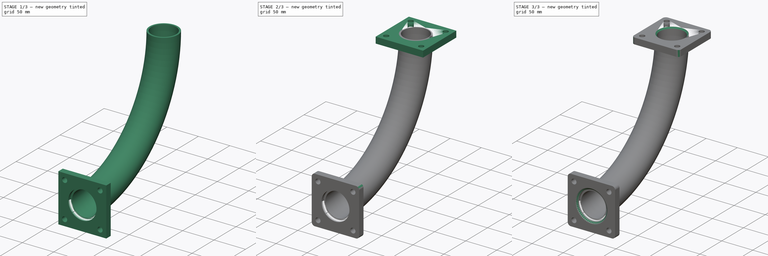
[diagram: build sequence overview — one tinted view per stage of 3, left to right]
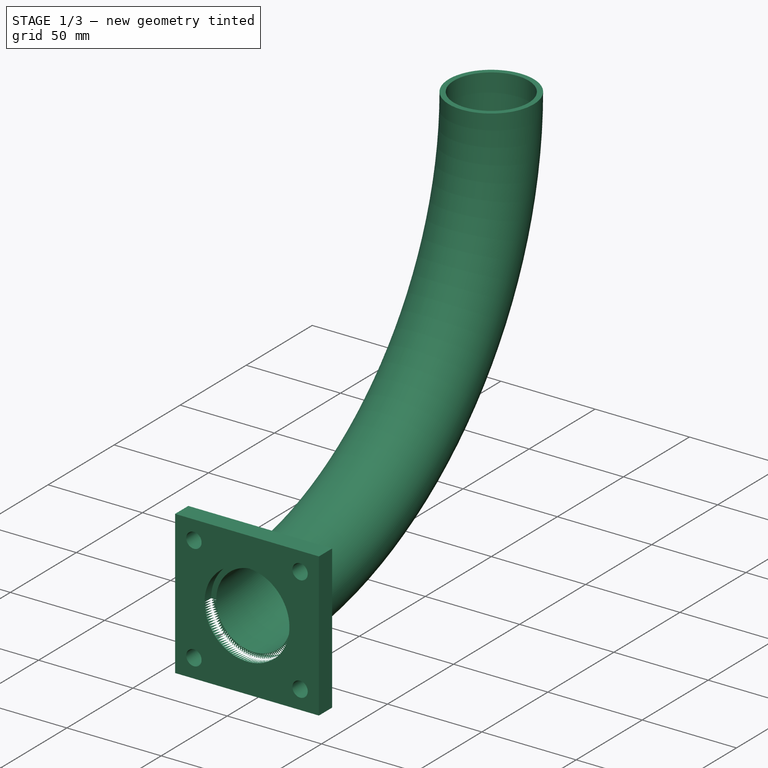
[diagram: stage 1 of 3 — iso view after this stage's code; geometry added in this stage tinted green]
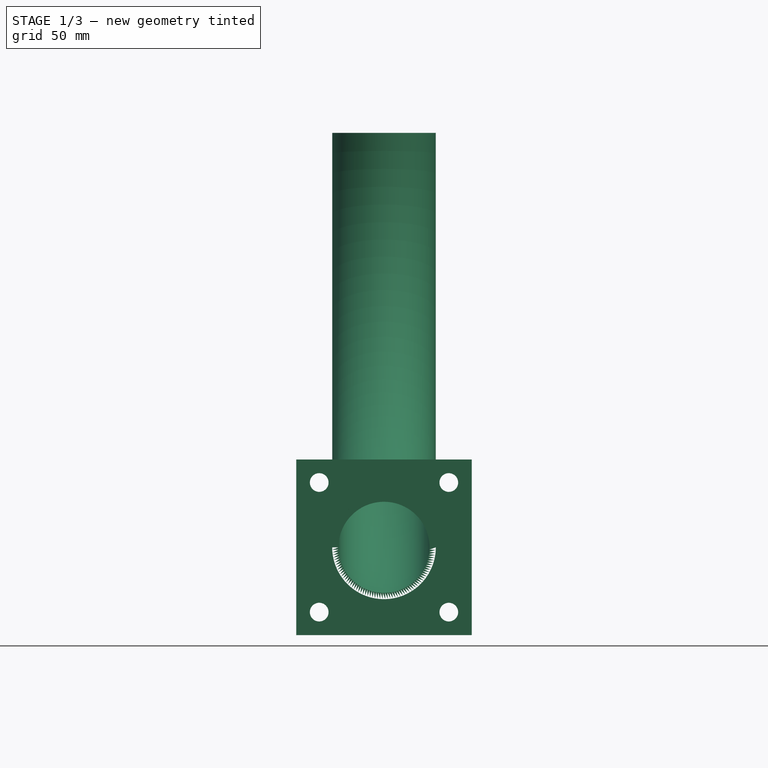
[diagram: stage 1 of 3 — front view after this stage's code; geometry added in this stage tinted green]
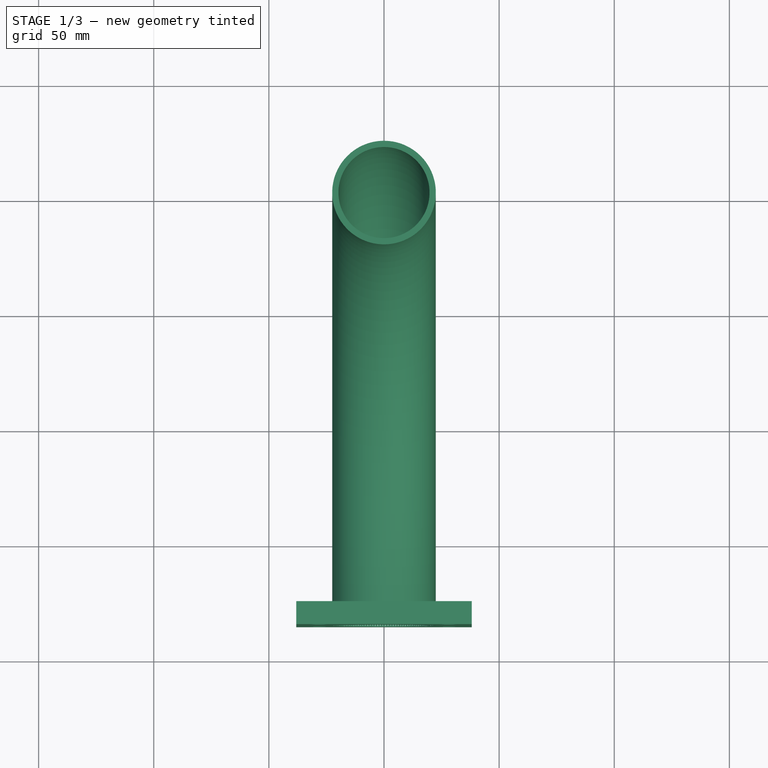
[diagram: stage 1 of 3 — top view after this stage's code; geometry added in this stage tinted green]
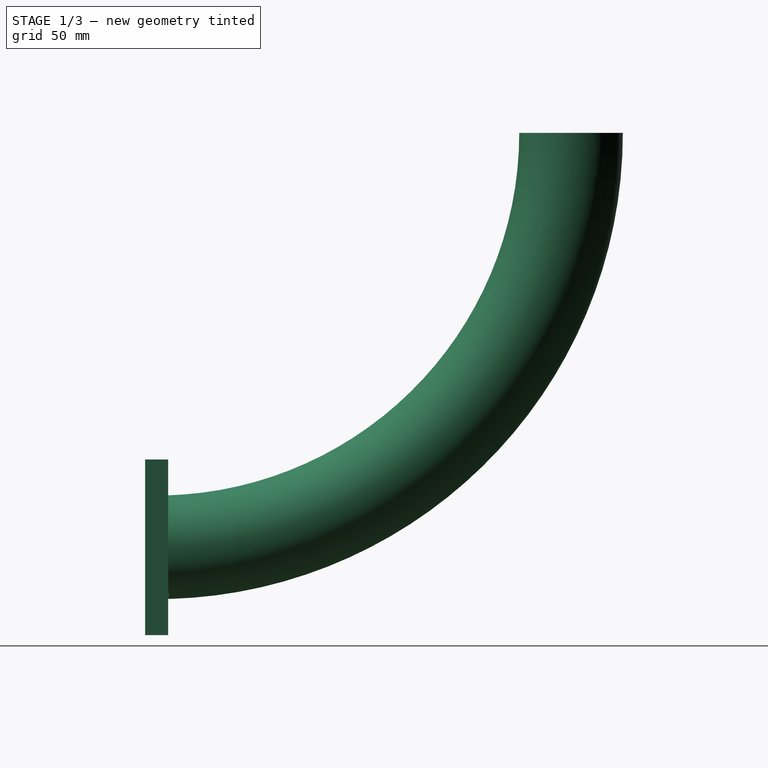
[diagram: stage 1 of 3 — right view after this stage's code; geometry added in this stage tinted green]
FCSTD DOCUMENT  (FreeCAD 0.21R33771 (Git))
Label: ex81
License: All rights reserved
LicenseURL: https://en.wikipedia.org/wiki/All_rights_reserved
objects: Sketcher::SketchObject×4, PartDesign::Fillet×3, PartDesign::Pad×2, PartDesign::Chamfer×2, PartDesign::AdditivePipe×1, PartDesign::Body×1
note: 21 computed .brp shape members not serialized (recipe doc carries the construction recipe); baked Part::Feature solids carry a one-line shape summary decoded from their .brp

FEATURE [Sketcher::SketchObject] Sketch001
  AttachmentOffset = pos=(0,-180,-180) rot=(1,0,0;1.5708rad)
  FullyConstrained = false
  MapMode = 5
  Placement = pos=(0,-180,-180) rot=(1,0,0;1.5708rad)
  Support = -> [XY_Plane]
  sketch-geometry (16):
    g0: LineSegment StartX=-38.1274 StartY=38.1274 StartZ=0 EndX=-38.1274 EndY=-38.1274 EndZ=0
    g1: LineSegment StartX=-38.1274 StartY=-38.1274 StartZ=0 EndX=38.1274 EndY=-38.1274 EndZ=0
    g2: LineSegment StartX=38.1274 StartY=-38.1274 StartZ=0 EndX=38.1274 EndY=38.1274 EndZ=0
    g3: LineSegment StartX=38.1274 StartY=38.1274 StartZ=0 EndX=-38.1274 EndY=38.1274 EndZ=0
    g4: GeomPoint X=0 Y=0 Z=0
    g5: LineSegment StartX=-28.1439 StartY=28.1439 StartZ=0 EndX=-28.1439 EndY=-28.1439 EndZ=0
    g6: LineSegment StartX=-28.1439 StartY=-28.1439 StartZ=0 EndX=28.1439 EndY=-28.1439 EndZ=0
    g7: LineSegment StartX=28.1439 StartY=-28.1439 StartZ=0 EndX=28.1439 EndY=28.1439 EndZ=0
    g8: LineSegment StartX=28.1439 StartY=28.1439 StartZ=0 EndX=-28.1439 EndY=28.1439 EndZ=0
    g9: GeomPoint X=0 Y=0 Z=0
    g10: Circle CenterX=-28.1439 CenterY=28.1439 CenterZ=0 NormalX=0 NormalY=0 NormalZ=1 AngleXU=0 Radius=4.05835
    g11: Circle CenterX=28.1439 CenterY=28.1439 CenterZ=0 NormalX=0 NormalY=0 NormalZ=1 AngleXU=0 Radius=4.05835
    g12: Circle CenterX=28.1439 CenterY=-28.1439 CenterZ=0 NormalX=0 NormalY=0 NormalZ=1 AngleXU=0 Radius=4.05835
    g13: Circle CenterX=-28.1439 CenterY=-28.1439 CenterZ=0 NormalX=0 NormalY=0 NormalZ=1 AngleXU=0 Radius=4.05835
    g14: Circle CenterX=0 CenterY=0 CenterZ=0 NormalX=0 NormalY=0 NormalZ=1 AngleXU=0 Radius=22.5014
    g15: Circle CenterX=0 CenterY=0 CenterZ=0 NormalX=0 NormalY=0 NormalZ=1 AngleXU=0 Radius=19.7869
  constraints (31):
    c: Coincident(g0,g1)
    c: Coincident(g1,g2)
    c: Coincident(g2,g3)
    c: Coincident(g3,g0)
    c: Horizontal(g1)
    c: Horizontal(g3)
    c: Vertical(g0)
    c: Vertical(g2)
    c: Symmetric(g1,g0,g4)
    c: Coincident(g4,g-1)
    c: Equal(g2,g1)
    c: Coincident(g5,g6)
    c: Coincident(g6,g7)
    c: Coincident(g7,g8)
    c: Coincident(g8,g5)
    c: Horizontal(g6)
    c: Horizontal(g8)
    c: Vertical(g5)
    c: Vertical(g7)
    c: Symmetric(g6,g5,g9)
    c: Coincident(g9,g4)
    c: Equal(g6,g7)
    c: Coincident(g10,g5)
    c: Coincident(g11,g7)
    c: Coincident(g12,g6)
    c: Coincident(g13,g5)
    c: Equal(g11,g10)
    c: Equal(g10,g13)
    c: Equal(g13,g12)
    c: Coincident(g14,g4)
    c: Coincident(g15,g14)
FEATURE [Sketcher::SketchObject] Sketch002
  FullyConstrained = true
  MapMode = 5
  Placement = pos=(0,0,0) rot=(0.57735,0.57735,0.57735;2.0944rad)
  Support = -> [YZ_Plane]
  sketch-geometry (1):
    g0: ArcOfCircle CenterX=-180 CenterY=-1.29751e-05 CenterZ=0 NormalX=0 NormalY=0 NormalZ=1 AngleXU=0 Radius=180 StartAngle=4.71239 EndAngle=6.28319
  constraints (4):
    c: Coincident(g0,g-1)
    c: Radius(g0) = 180
    c: Tangent(g0,g-2)
    c: DistanceX(g0,g0) = 180
FEATURE [Sketcher::SketchObject] Sketch003
  AttachmentOffset = pos=(0,-180,-180) rot=(1,0,0;1.5708rad)
  FullyConstrained = false
  MapMode = 5
  Placement = pos=(0,-180,-180) rot=(1,0,0;1.5708rad)
  Support = -> [XY_Plane]
  sketch-geometry (15):
    g0: LineSegment StartX=-38.1274 StartY=38.1274 StartZ=0 EndX=-38.1274 EndY=-38.1274 EndZ=0
    g1: LineSegment StartX=-38.1274 StartY=-38.1274 StartZ=0 EndX=38.1274 EndY=-38.1274 EndZ=0
    g2: LineSegment StartX=38.1274 StartY=-38.1274 StartZ=0 EndX=38.1274 EndY=38.1274 EndZ=0
    g3: LineSegment StartX=38.1274 StartY=38.1274 StartZ=0 EndX=-38.1274 EndY=38.1274 EndZ=0
    g4: GeomPoint X=0 Y=0 Z=0
    g5: LineSegment StartX=-28.1439 StartY=28.1439 StartZ=0 EndX=-28.1439 EndY=-28.1439 EndZ=0
    g6: LineSegment StartX=-28.1439 StartY=-28.1439 StartZ=0 EndX=28.1439 EndY=-28.1439 EndZ=0
    g7: LineSegment StartX=28.1439 StartY=-28.1439 StartZ=0 EndX=28.1439 EndY=28.1439 EndZ=0
    g8: LineSegment StartX=28.1439 StartY=28.1439 StartZ=0 EndX=-28.1439 EndY=28.1439 EndZ=0
    g9: GeomPoint X=0 Y=0 Z=0
    g10: Circle CenterX=-28.1439 CenterY=28.1439 CenterZ=0 NormalX=0 NormalY=0 NormalZ=1 AngleXU=0 Radius=4.05835
    g11: Circle CenterX=28.1439 CenterY=28.1439 CenterZ=0 NormalX=0 NormalY=0 NormalZ=1 AngleXU=0 Radius=4.05835
    g12: Circle CenterX=28.1439 CenterY=-28.1439 CenterZ=0 NormalX=0 NormalY=0 NormalZ=1 AngleXU=0 Radius=4.05835
    g13: Circle CenterX=-28.1439 CenterY=-28.1439 CenterZ=0 NormalX=0 NormalY=0 NormalZ=1 AngleXU=0 Radius=4.05835
    g14: Circle CenterX=0 CenterY=0 CenterZ=0 NormalX=0 NormalY=0 NormalZ=1 AngleXU=0 Radius=22.5014
  constraints (30):
    c: Coincident(g0,g1)
    c: Coincident(g1,g2)
    c: Coincident(g2,g3)
    c: Coincident(g3,g0)
    c: Horizontal(g1)
    c: Horizontal(g3)
    c: Vertical(g0)
    c: Vertical(g2)
    c: Symmetric(g1,g0,g4)
    c: Coincident(g4,g-1)
    c: Equal(g2,g1)
    c: Coincident(g5,g6)
    c: Coincident(g6,g7)
    c: Coincident(g7,g8)
    c: Coincident(g8,g5)
    c: Horizontal(g6)
    c: Horizontal(g8)
    c: Vertical(g5)
    c: Vertical(g7)
    c: Symmetric(g6,g5,g9)
    c: Coincident(g9,g4)
    c: Equal(g6,g7)
    c: Coincident(g10,g5)
    c: Coincident(g11,g7)
    c: Coincident(g12,g6)
    c: Coincident(g13,g5)
    c: Equal(g11,g10)
    c: Equal(g10,g13)
    c: Equal(g13,g12)
    c: Coincident(g14,g4)
FEATURE [Sketcher::SketchObject] Sketch004
  FullyConstrained = false
  MapMode = 5
  Support = -> [XY_Plane]
  sketch-geometry (15):
    g0: LineSegment StartX=-38.1274 StartY=38.1274 StartZ=0 EndX=-38.1274 EndY=-38.1274 EndZ=0
    g1: LineSegment StartX=-38.1274 StartY=-38.1274 StartZ=0 EndX=38.1274 EndY=-38.1274 EndZ=0
    g2: LineSegment StartX=38.1274 StartY=-38.1274 StartZ=0 EndX=38.1274 EndY=38.1274 EndZ=0
    g3: LineSegment StartX=38.1274 StartY=38.1274 StartZ=0 EndX=-38.1274 EndY=38.1274 EndZ=0
    g4: GeomPoint X=0 Y=0 Z=0
    g5: LineSegment StartX=-28.1439 StartY=28.1439 StartZ=0 EndX=-28.1439 EndY=-28.1439 EndZ=0
    g6: LineSegment StartX=-28.1439 StartY=-28.1439 StartZ=0 EndX=28.1439 EndY=-28.1439 EndZ=0
    g7: LineSegment StartX=28.1439 StartY=-28.1439 StartZ=0 EndX=28.1439 EndY=28.1439 EndZ=0
    g8: LineSegment StartX=28.1439 StartY=28.1439 StartZ=0 EndX=-28.1439 EndY=28.1439 EndZ=0
    g9: GeomPoint X=0 Y=0 Z=0
    g10: Circle CenterX=-28.1439 CenterY=28.1439 CenterZ=0 NormalX=0 NormalY=0 NormalZ=1 AngleXU=0 Radius=4.05835
    g11: Circle CenterX=28.1439 CenterY=28.1439 CenterZ=0 NormalX=0 NormalY=0 NormalZ=1 AngleXU=0 Radius=4.05835
    g12: Circle CenterX=28.1439 CenterY=-28.1439 CenterZ=0 NormalX=0 NormalY=0 NormalZ=1 AngleXU=0 Radius=4.05835
    g13: Circle CenterX=-28.1439 CenterY=-28.1439 CenterZ=0 NormalX=0 NormalY=0 NormalZ=1 AngleXU=0 Radius=4.05835
    g14: Circle CenterX=0 CenterY=0 CenterZ=0 NormalX=0 NormalY=0 NormalZ=1 AngleXU=0 Radius=22.5014
  constraints (30):
    c: Coincident(g0,g1)
    c: Coincident(g1,g2)
    c: Coincident(g2,g3)
    c: Coincident(g3,g0)
    c: Horizontal(g1)
    c: Horizontal(g3)
    c: Vertical(g0)
    c: Vertical(g2)
    c: Symmetric(g1,g0,g4)
    c: Coincident(g4,g-1)
    c: Equal(g2,g1)
    c: Coincident(g5,g6)
    c: Coincident(g6,g7)
    c: Coincident(g7,g8)
    c: Coincident(g8,g5)
    c: Horizontal(g6)
    c: Horizontal(g8)
    c: Vertical(g5)
    c: Vertical(g7)
    c: Symmetric(g6,g5,g9)
    c: Coincident(g9,g4)
    c: Equal(g6,g7)
    c: Coincident(g10,g5)
    c: Coincident(g11,g7)
    c: Coincident(g12,g6)
    c: Coincident(g13,g5)
    c: Equal(g11,g10)
    c: Equal(g10,g13)
    c: Equal(g13,g12)
    c: Coincident(g14,g4)
FEATURE [PartDesign::AdditivePipe] AdditivePipe
  AuxilleryCurvelinear = true
  AuxillerySpineTangent = false
  Binormal = (0,0,0)
  Mode = 0
  Profile = -> Sketch001
  Spine = -> Sketch002
  SpineTangent = false
  Transformation = 0
  Transition = 0
FEATURE [PartDesign::Fillet] Fillet
  Base = -> AdditivePipe
  BaseFeature = -> AdditivePipe
  Radius = 5
  SupportTransform = false
  UseAllEdges = false
FEATURE [PartDesign::Pad] Pad
  BaseFeature = -> Fillet
  Direction = (0,-1,2e-16)
  Length = 10
  Length2 = 10
  Midplane = true
  Profile = -> Sketch003
  ReferenceAxis = -> Sketch003 [N_Axis]
  Type = 0
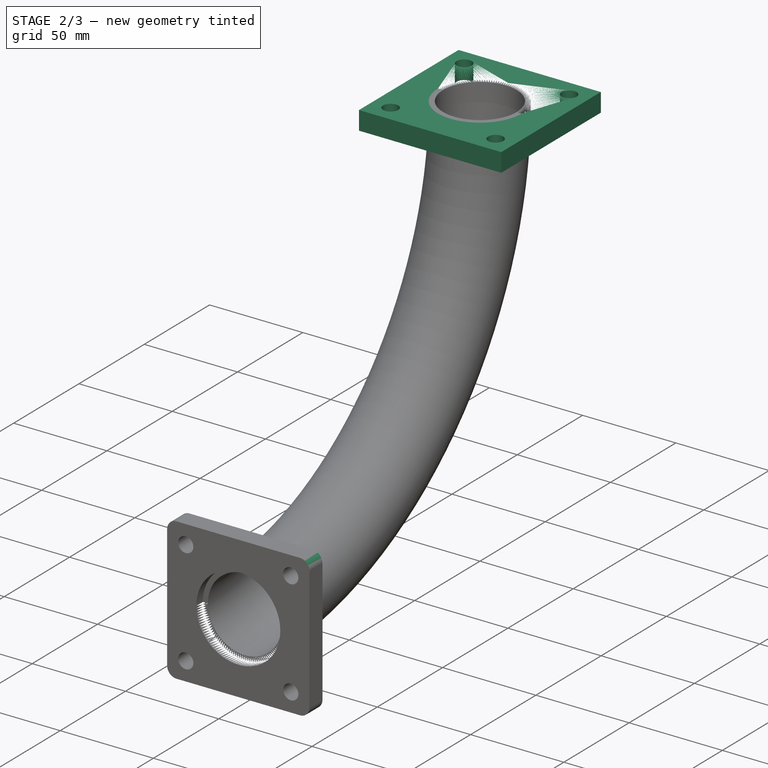
[diagram: stage 2 of 3 — iso view after this stage's code; geometry added in this stage tinted green]
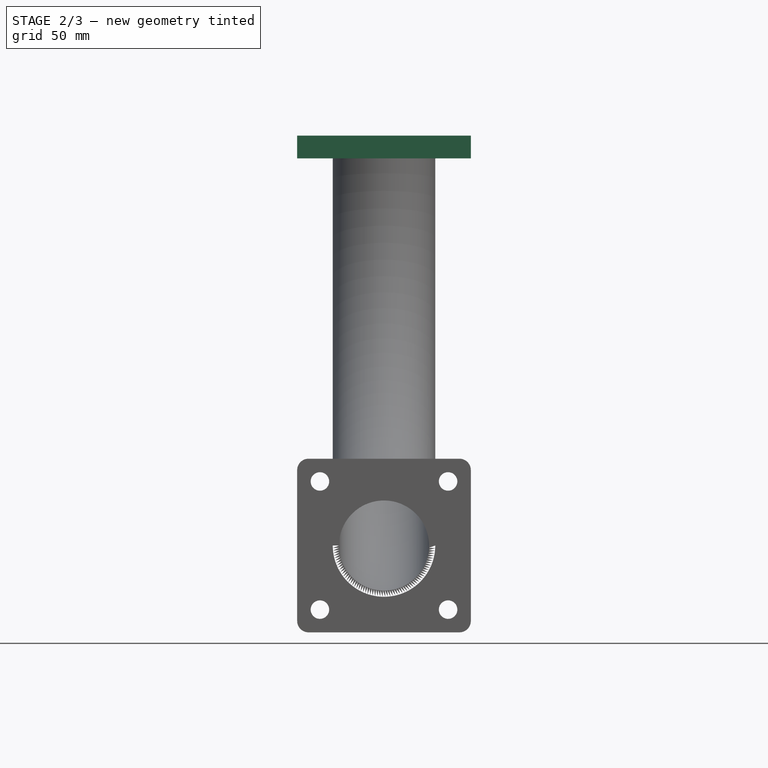
[diagram: stage 2 of 3 — front view after this stage's code; geometry added in this stage tinted green]
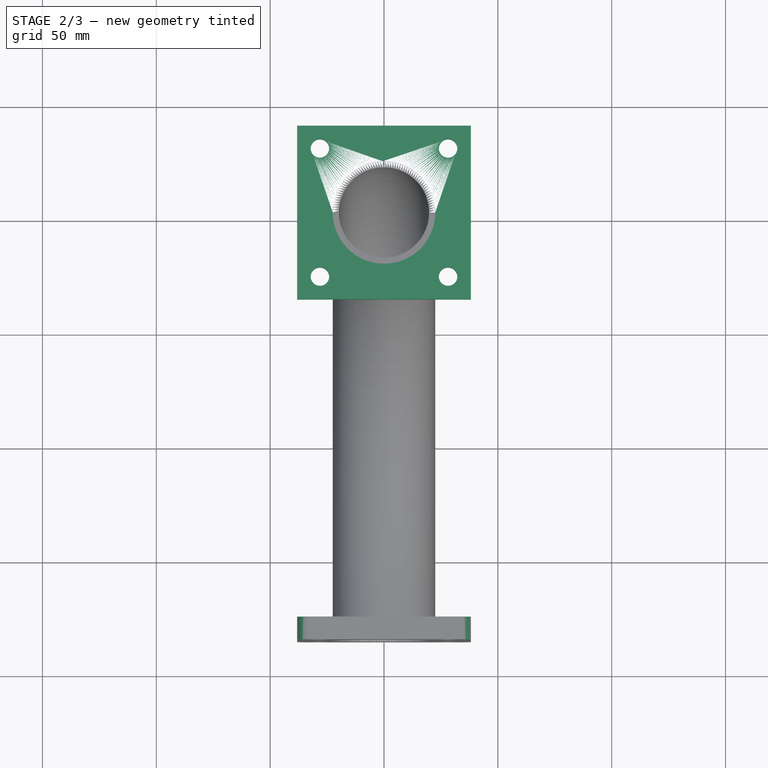
[diagram: stage 2 of 3 — top view after this stage's code; geometry added in this stage tinted green]
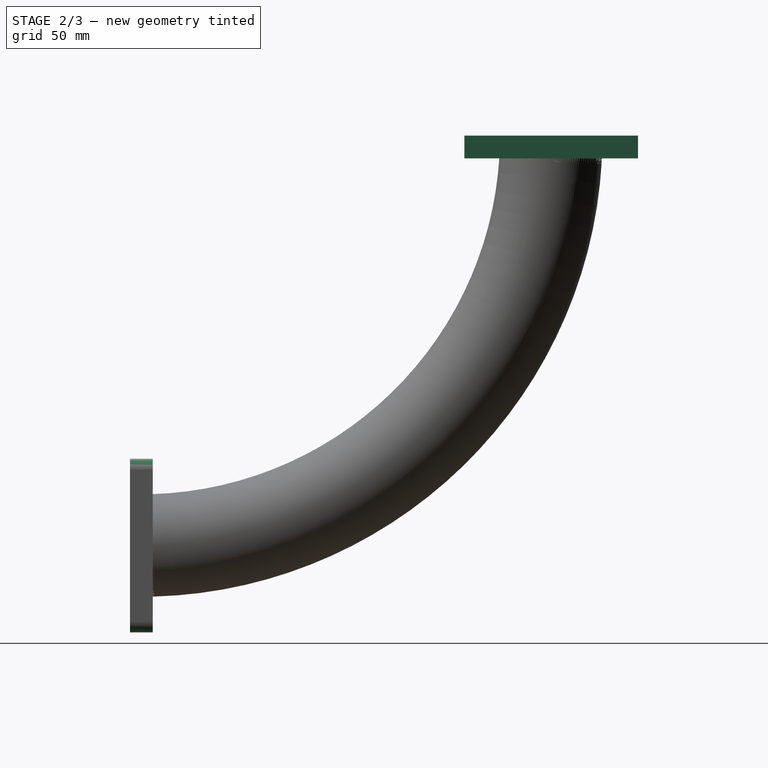
[diagram: stage 2 of 3 — right view after this stage's code; geometry added in this stage tinted green]
FEATURE [PartDesign::Pad] Pad001
  BaseFeature = -> Pad
  Direction = (0,0,1)
  Length = 10
  Length2 = 10
  Profile = -> Sketch004
  ReferenceAxis = -> Sketch004 [N_Axis]
  Reversed = true
  Type = 0
FEATURE [PartDesign::Fillet] Fillet001
  Base = -> Pad001 [Edge18,Edge21,Edge23,Edge19]
  BaseFeature = -> Pad001
  Radius = 5
  SupportTransform = false
  UseAllEdges = false
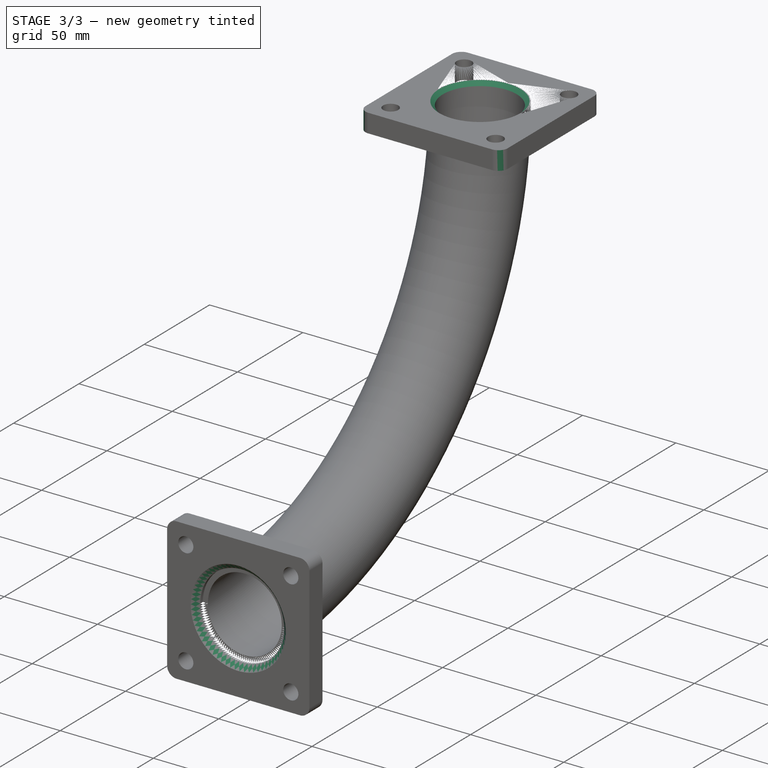
[diagram: stage 3 of 3 — iso view after this stage's code; geometry added in this stage tinted green]
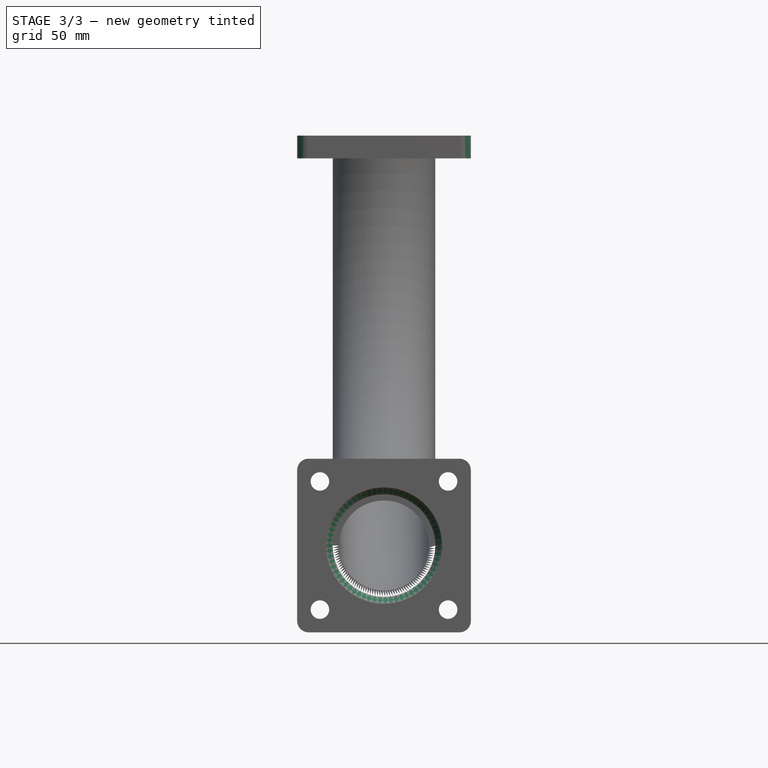
[diagram: stage 3 of 3 — front view after this stage's code; geometry added in this stage tinted green]
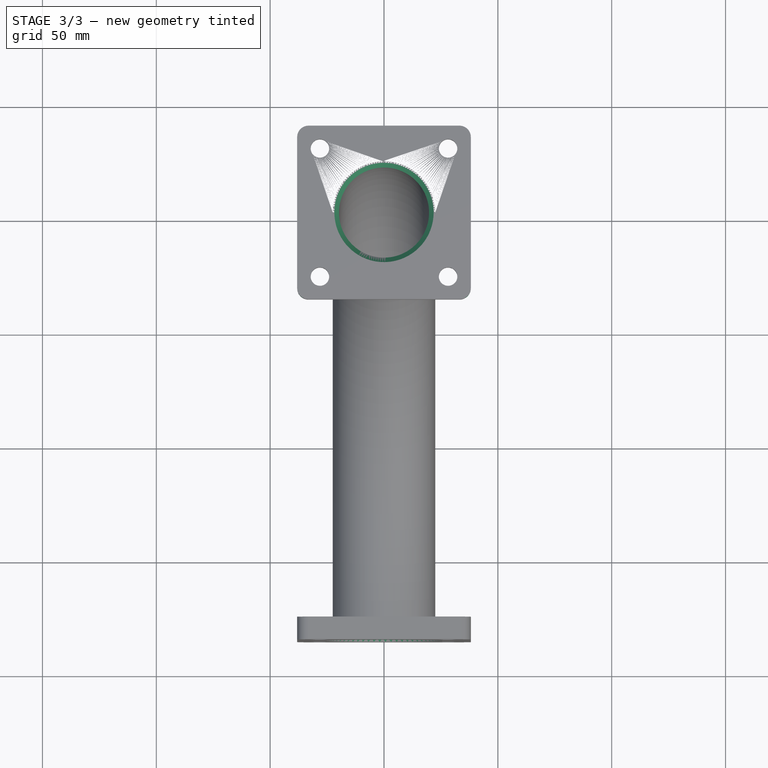
[diagram: stage 3 of 3 — top view after this stage's code; geometry added in this stage tinted green]
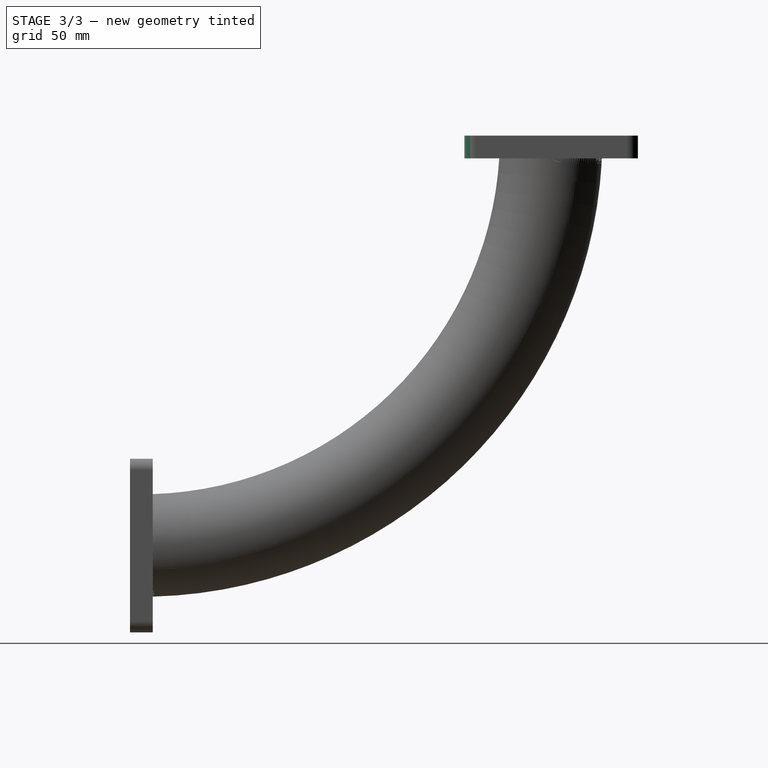
[diagram: stage 3 of 3 — right view after this stage's code; geometry added in this stage tinted green]
FEATURE [PartDesign::Chamfer] Chamfer
  Angle = 45
  Base = -> Fillet001 [Edge9]
  BaseFeature = -> Fillet001
  ChamferType = 0
  FlipDirection = false
  Size = 3
  Size2 = 1
  SupportTransform = false
  UseAllEdges = false
FEATURE [PartDesign::Chamfer] Chamfer001
  Angle = 45
  Base = -> Chamfer [Edge59]
  BaseFeature = -> Chamfer
  ChamferType = 0
  FlipDirection = false
  Size = 2
  Size2 = 1
  SupportTransform = false
  UseAllEdges = false
FEATURE [PartDesign::Fillet] Fillet002
  Base = -> Chamfer001 [Edge59,Edge58,Edge60,Edge61]
  BaseFeature = -> Chamfer001
  Radius = 5
  SupportTransform = false
  UseAllEdges = false
FEATURE [PartDesign::Body] Body
  Group = -> [Sketch001,Sketch002,Sketch003,Sketch004,AdditivePipe,Fillet,Pad,Pad001,Fillet001,Chamfer,Chamfer001,Fillet002]
  Origin = -> Origin
  Tip = -> Fillet002
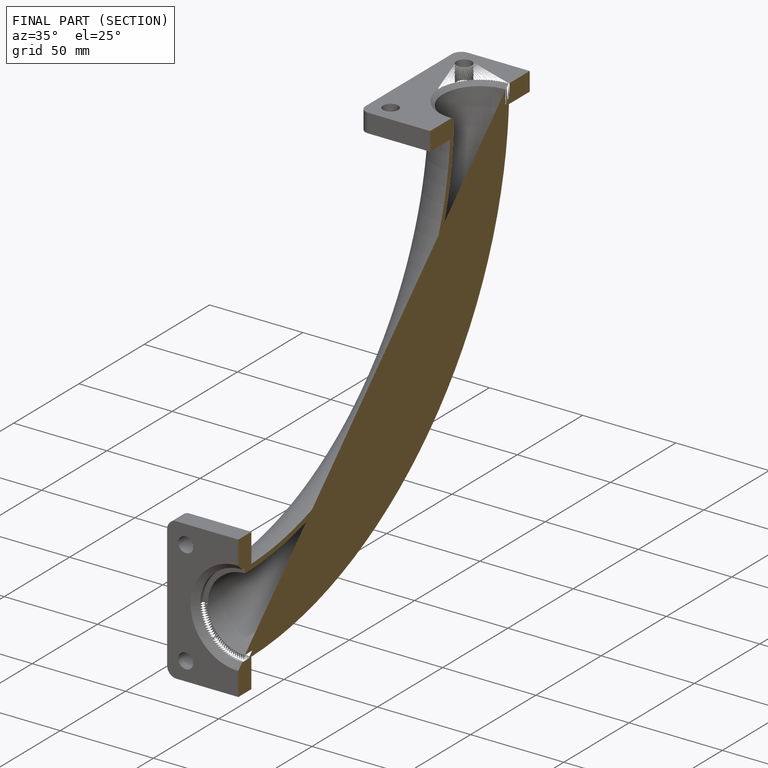
[diagram: finished part — half-section view (interior)]
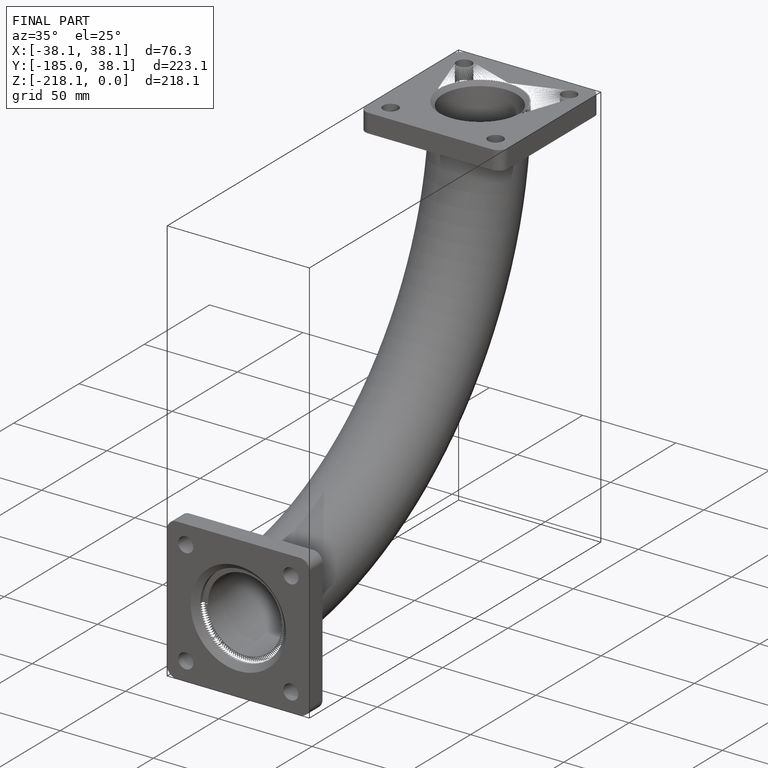
[diagram: finished part — iso view with bounding-box wireframe]
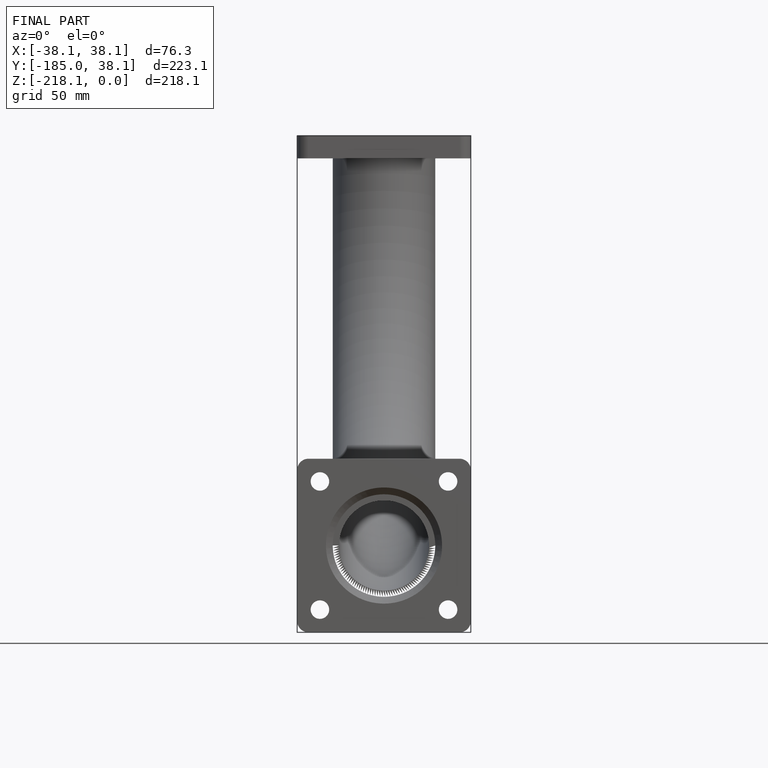
[diagram: finished part — front view with bounding-box wireframe]
